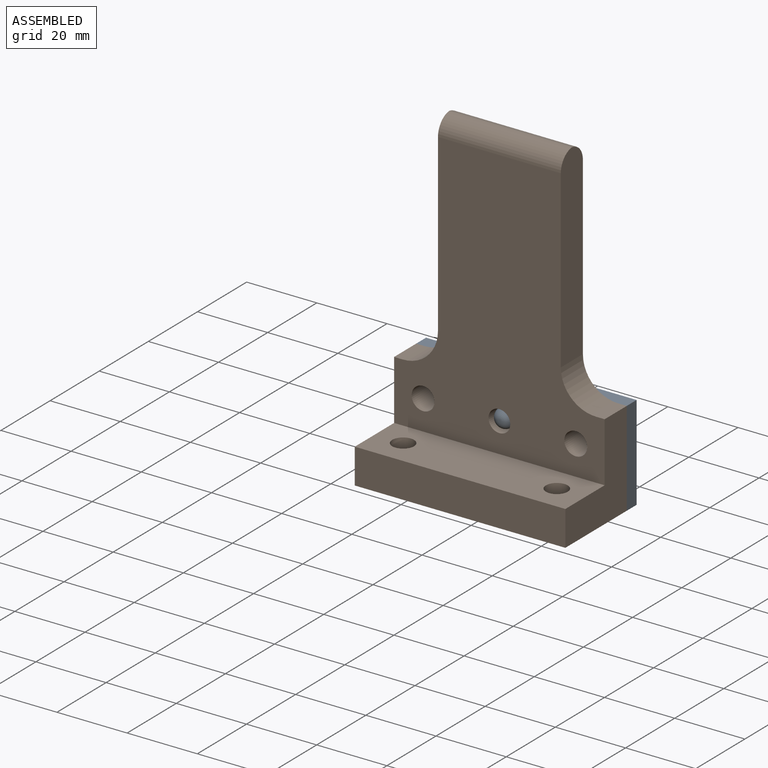
[diagram: assembled view]
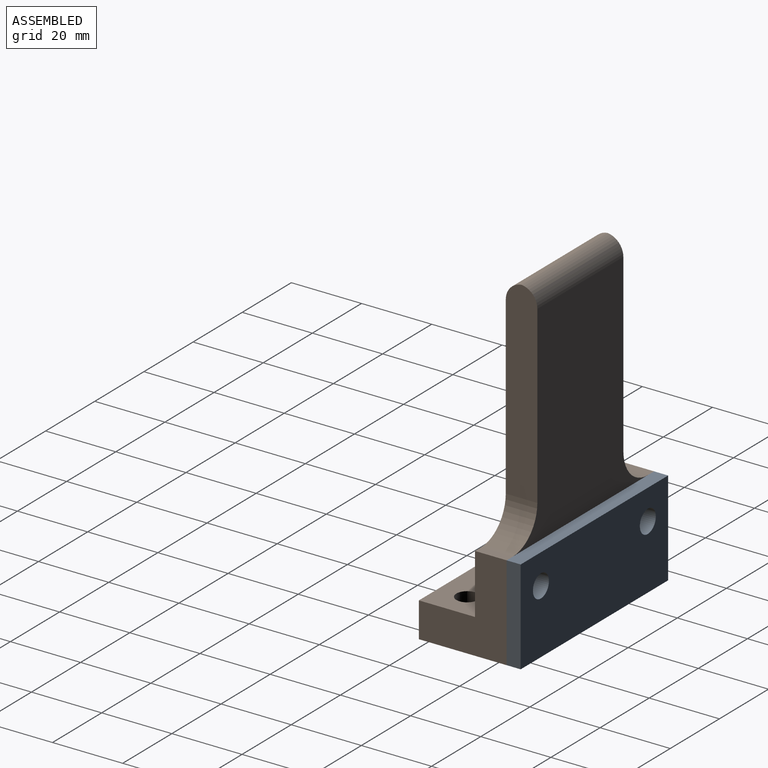
[diagram: assembled view, second angle]
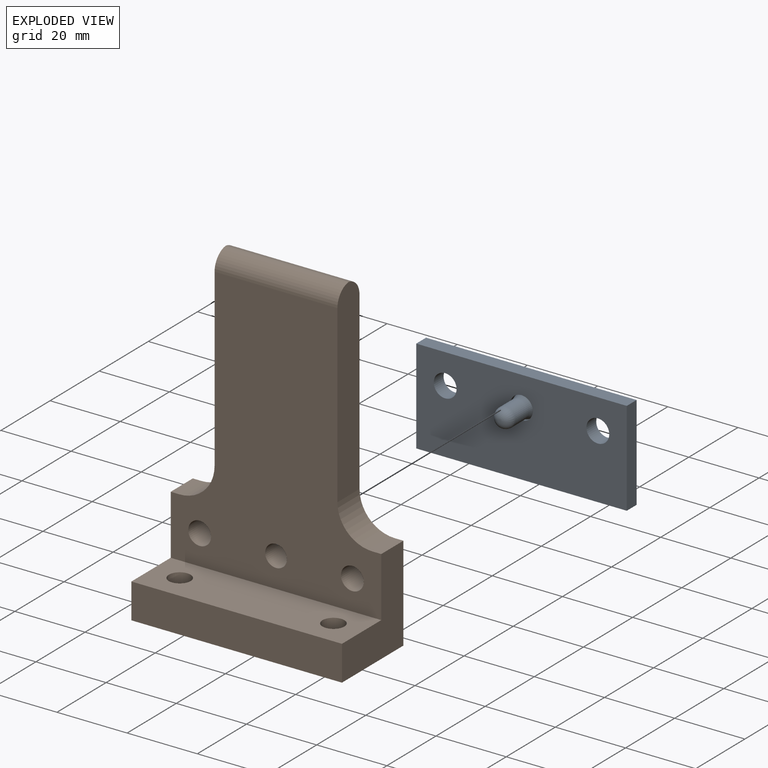
[diagram: exploded view]
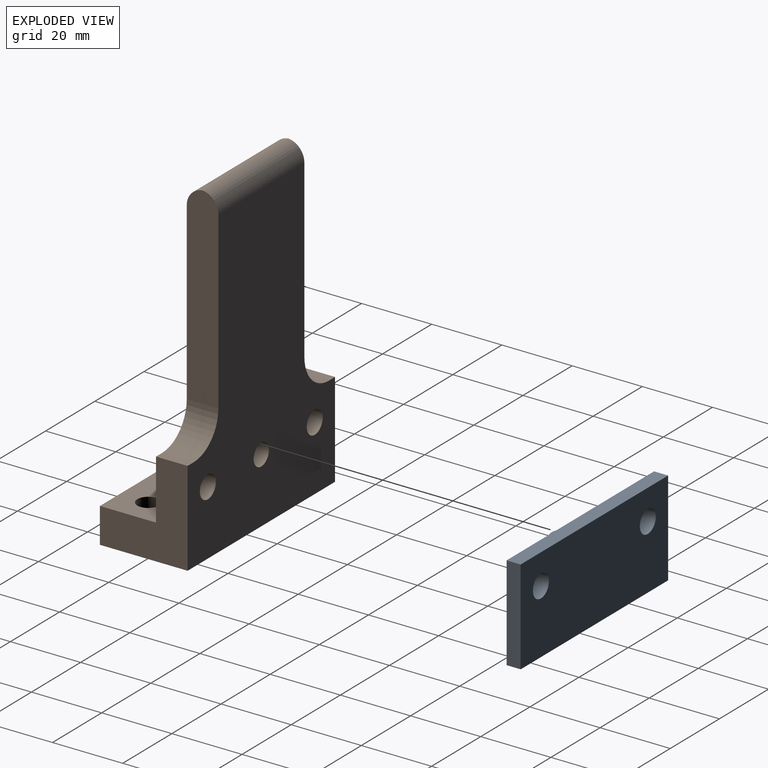
[diagram: exploded view, second angle]
ASSEMBLY  parts=2 mates=2
PART A: 13 faces, bbox 60x27x13 mm
  f0: plane 60x4mm, normal (0,1,0), area 240mm2, adj f1,f3,f4,f5
  f1: plane 27x4mm, normal (-1,0,0), area 108mm2, adj f0,f2,f4,f5
  f2: plane 60x4mm, normal (0,-1,0), area 240mm2, adj f1,f3,f4,f5
  f3: plane 27x4mm, normal (1,0,0), area 108mm2, adj f0,f2,f4,f5
  f4: plane 60x27mm, normal (0,0,1), area 1520.5mm2, adj f0,f1,f2,f3,f6,f7,f8
  f5: plane 60x27mm, normal (0,0,-1), area 1553.6mm2, adj f0,f1,f2,f3,f6,f7
  f6: cylinder r=3.25mm len=6.5mm, axis (0,0,1), area 81.7mm2, adj f4,f5
  f7: cylinder r=3.25mm len=6.5mm, axis (0,0,1), area 81.7mm2, adj f4,f5
  f8: cylinder r=3.25mm len=6.5mm, axis (0,0,1), area 20.4mm2, adj f4,f12
  f9: plane 0.5x0.5mm, normal (0,0,1), area 0.2mm2, adj f10
  f10: torus R=0.25mm, axis (0,0,1), area 45.4mm2, adj f9,f11
  f11: cylinder r=2.75mm len=5.5mm, axis (0,0,-1), area 91.9mm2, adj f10,f12
  f12: torus R=7.75mm, axis (0,0,-1), area 41.3mm2, adj f8,f11
PART B: 20 faces, bbox 60x25x92 mm
  f0: plane 60x16mm, normal (0,0,1), area 899.6mm2, adj f1,f3,f4,f7,f9,f10
  f1: plane 27x25mm, normal (1,0,0), area 403mm2, adj f0,f2,f4,f5,f7,f12
  f2: plane 87x60mm, normal (0,1,0), area 3666.4mm2, adj f1,f3,f5,f6,f8,f11,f12,f13
  f3: plane 27x25mm, normal (-1,0,0), area 403mm2, adj f0,f2,f4,f5,f7,f11
  f4: plane 60x10mm, normal (0,-1,0), area 600mm2, adj f0,f1,f3,f5
  f5: plane 60x25mm, normal (0,0,-1), area 1439.6mm2, adj f1,f2,f3,f4,f9,f10
  f6: plane 54.98x9mm, normal (-1,0,0), area 484.3mm2, adj f2,f7,f15,f16,f18
  f7: plane 77x60mm, normal (0,-1,0), area 3066.4mm2, adj f0,f1,f3,f6,f8,f11,f12,f13
  f8: plane 54.98x9mm, normal (1,0,0), area 484.3mm2, adj f2,f7,f15,f16,f17
  f9: cylinder r=3.1mm len=10mm, axis (0,0,1), area 194.8mm2, adj f0,f5
  f10: cylinder r=3.1mm len=10mm, axis (0,0,1), area 194.8mm2, adj f0,f5
  f11: plane 9x2.5mm, normal (0,0,1), area 22.5mm2, adj f2,f3,f7,f18
  f12: plane 9x2.5mm, normal (0,0,1), area 22.5mm2, adj f1,f2,f7,f17
  f13: cylinder r=3.25mm len=9mm, axis (0,-1,0), area 183.8mm2, adj f2,f7
  f14: cylinder r=3.25mm len=9mm, axis (0,-1,0), area 183.8mm2, adj f2,f7
  f15: cylinder r=5mm len=35mm, axis (1,0,0), area 257.4mm2, adj f2,f6,f8,f16
  f16: cylinder r=5mm len=35mm, axis (-1,0,0), area 257.4mm2, adj f6,f7,f8,f15
  f17: cylinder r=10mm len=10mm, axis (0,1,0), area 141.4mm2, adj f2,f7,f8,f12
  f18: cylinder r=10mm len=10mm, axis (0,-1,0), area 141.4mm2, adj f2,f6,f7,f11
  f19: cylinder r=3.1mm len=9mm, axis (0,-1,0), area 175.3mm2, adj f2,f7
PLACE A rot(axis=(1,0,0),90deg) t=(-74.86,48.45,18.16)mm
PLACE B rot(axis=(1,0,0),0deg) t=(-2.78,31.95,9.37)mm
MATE cylindrical A.f8 <-> B.f19  axis (0,-1,0) through (-2.78,36.18,27.87)mm
MATE planar A.f4 <-> B.f2  axis (0,-1,0) through (-2.78,44.45,22.55)mm
